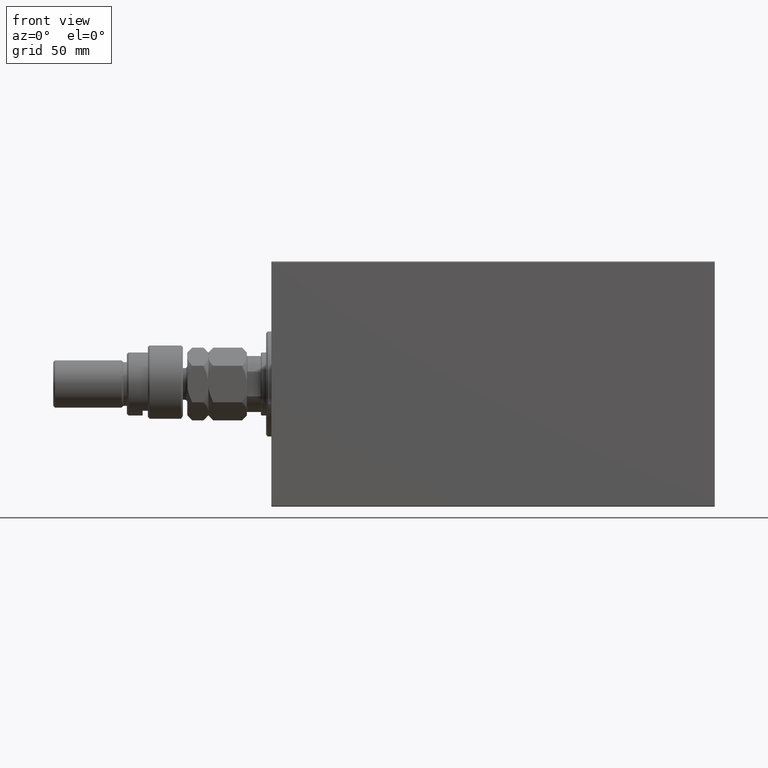
[diagram: clean part render]
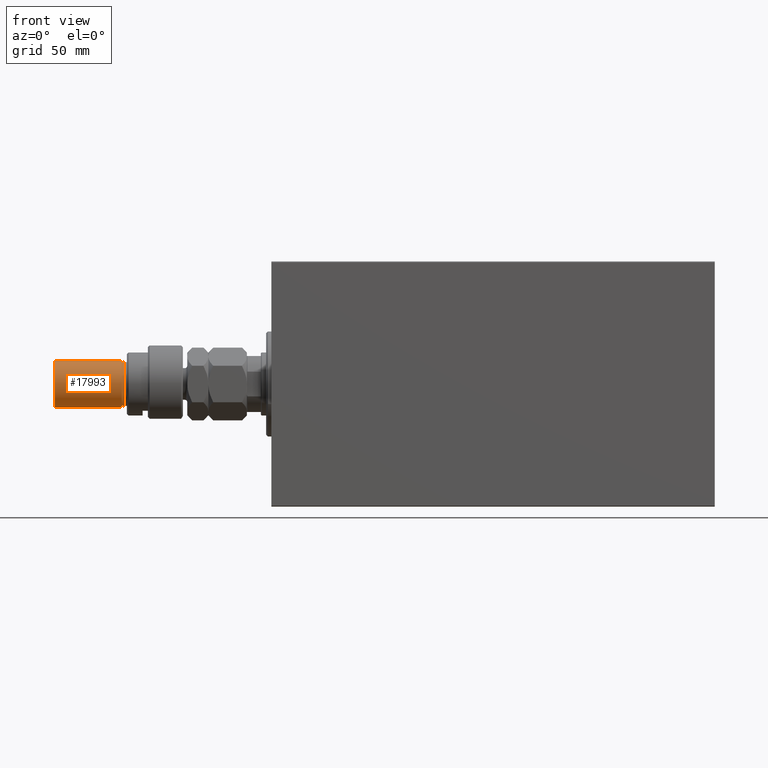
[diagram: same view with one face highlighted and labeled with its STEP entity id]
A machine part, front view. The second image highlights one B-rep face of the part: STEP entity #17993.
In plain terms, the highlighted cylindrical surface (edge-blend (fillet) strip) has radius 13.5 mm, axis along (1, -0, -0).
Its self-contained STEP definition (entity closure, byte-faithful):
#3285 = EDGE_CURVE ( 'NONE', #8109, #38441, #8028, .T. ) ;
#3309 = DIRECTION ( 'NONE',  ( 0.000000000000000000, 0.000000000000000000, -1.000000000000000000 ) ) ;
#3529 = AXIS2_PLACEMENT_3D ( 'NONE', #28331, #3309, #17703 ) ;
#3818 = VERTEX_POINT ( 'NONE', #13149 ) ;
#8028 = CIRCLE ( 'NONE', #16309, 13.50000000000000000 ) ;
#8109 = VERTEX_POINT ( 'NONE', #30367 ) ;
#8973 = VERTEX_POINT ( 'NONE', #13190 ) ;
#9219 = CARTESIAN_POINT ( 'NONE',  ( -13.50000000000000000, 0.000000000000000000, 74.00000000000001421 ) ) ;
#11139 = VECTOR ( 'NONE', #36658, 1000.000000000000000 ) ;
#13149 = CARTESIAN_POINT ( 'NONE',  ( -13.50000000000000000, 0.000000000000000000, 73.00000000000001421 ) ) ;
#13190 = CARTESIAN_POINT ( 'NONE',  ( 13.50000000000000000, 1.653273178848926867E-15, 73.00000000000001421 ) ) ;
#16309 = AXIS2_PLACEMENT_3D ( 'NONE', #34503, #45827, #38959 ) ;
#17703 = DIRECTION ( 'NONE',  ( 1.000000000000000000, 0.000000000000000000, 0.000000000000000000 ) ) ;
#17993 = ADVANCED_FACE ( 'NONE', ( #45025 ), #28006, .T. ) ;
#19816 = ORIENTED_EDGE ( 'NONE', *, *, #26512, .F. ) ;
#20690 = DIRECTION ( 'NONE',  ( -0.000000000000000000, -0.000000000000000000, -1.000000000000000000 ) ) ;
#21868 = AXIS2_PLACEMENT_3D ( 'NONE', #38152, #20690, #41929 ) ;
#23834 = ORIENTED_EDGE ( 'NONE', *, *, #30644, .T. ) ;
#24252 = CARTESIAN_POINT ( 'NONE',  ( 13.50000000000000000, 1.653273178848926867E-15, 34.99999999999999289 ) ) ;
#25826 = LINE ( 'NONE', #33840, #11139 ) ;
#26512 = EDGE_CURVE ( 'NONE', #8973, #38441, #25826, .T. ) ;
#28006 = CYLINDRICAL_SURFACE ( 'NONE', #21868, 13.50000000000000000 ) ;
#28331 = CARTESIAN_POINT ( 'NONE',  ( 0.000000000000000000, 0.000000000000000000, 73.00000000000001421 ) ) ;
#29480 = EDGE_CURVE ( 'NONE', #8973, #3818, #38935, .T. ) ;
#30367 = CARTESIAN_POINT ( 'NONE',  ( -13.50000000000000000, 0.000000000000000000, 34.99999999999999289 ) ) ;
#30644 = EDGE_CURVE ( 'NONE', #3818, #8109, #41539, .T. ) ;
#30666 = DIRECTION ( 'NONE',  ( -0.000000000000000000, -0.000000000000000000, -1.000000000000000000 ) ) ;
#32944 = VECTOR ( 'NONE', #30666, 1000.000000000000000 ) ;
#33774 = ORIENTED_EDGE ( 'NONE', *, *, #3285, .T. ) ;
#33840 = CARTESIAN_POINT ( 'NONE',  ( 13.50000000000000000, 1.653273178848926867E-15, 74.00000000000001421 ) ) ;
#34503 = CARTESIAN_POINT ( 'NONE',  ( 0.000000000000000000, 0.000000000000000000, 34.99999999999999289 ) ) ;
#35723 = EDGE_LOOP ( 'NONE', ( #19816, #42048, #23834, #33774 ) ) ;
#36658 = DIRECTION ( 'NONE',  ( -0.000000000000000000, -0.000000000000000000, -1.000000000000000000 ) ) ;
#38152 = CARTESIAN_POINT ( 'NONE',  ( 0.000000000000000000, 0.000000000000000000, 74.00000000000001421 ) ) ;
#38441 = VERTEX_POINT ( 'NONE', #24252 ) ;
#38935 = CIRCLE ( 'NONE', #3529, 13.50000000000000000 ) ;
#38959 = DIRECTION ( 'NONE',  ( 1.000000000000000000, 0.000000000000000000, 0.000000000000000000 ) ) ;
#41539 = LINE ( 'NONE', #9219, #32944 ) ;
#41929 = DIRECTION ( 'NONE',  ( -1.000000000000000000, 0.000000000000000000, 0.000000000000000000 ) ) ;
#42048 = ORIENTED_EDGE ( 'NONE', *, *, #29480, .T. ) ;
#45025 = FACE_OUTER_BOUND ( 'NONE', #35723, .T. ) ;
#45827 = DIRECTION ( 'NONE',  ( -0.000000000000000000, -0.000000000000000000, 1.000000000000000000 ) ) ;